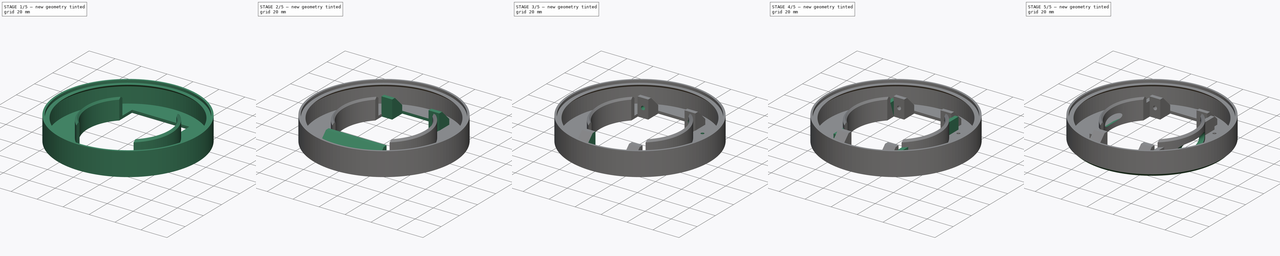
[diagram: build sequence overview — one tinted view per stage of 5, left to right]
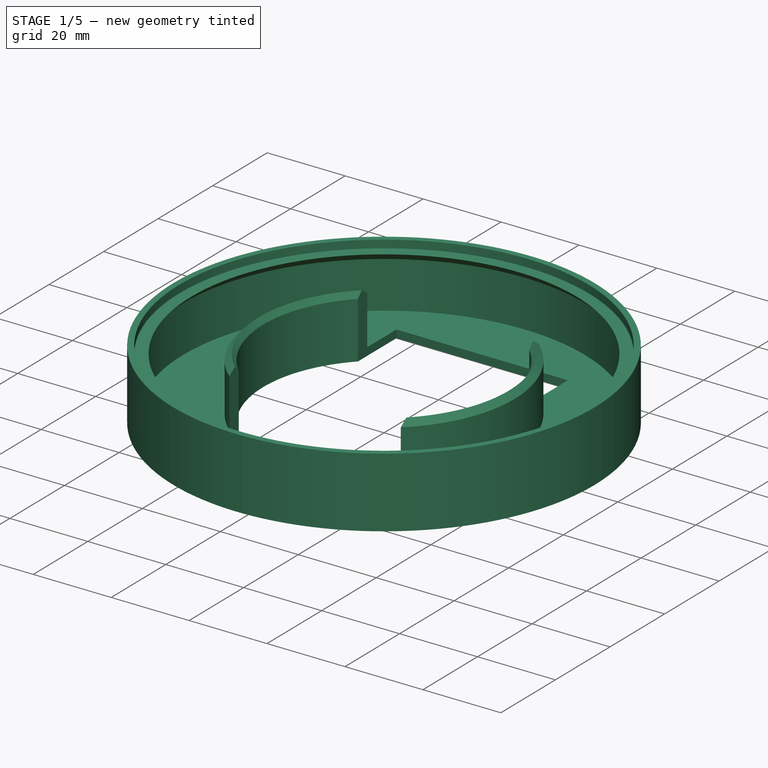
[diagram: stage 1 of 5 — iso view after this stage's code; geometry added in this stage tinted green]
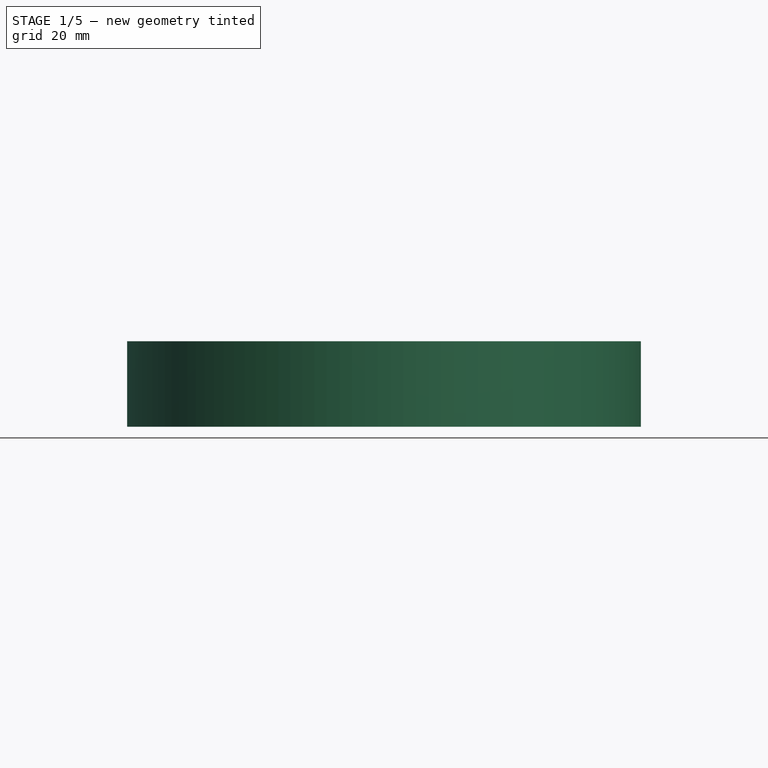
[diagram: stage 1 of 5 — front view after this stage's code; geometry added in this stage tinted green]
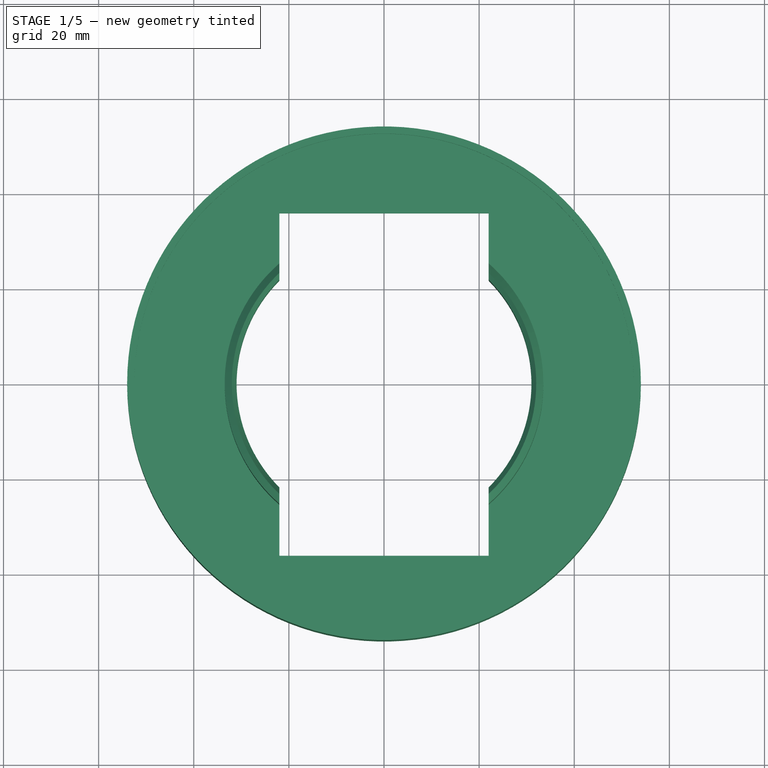
[diagram: stage 1 of 5 — top view after this stage's code; geometry added in this stage tinted green]
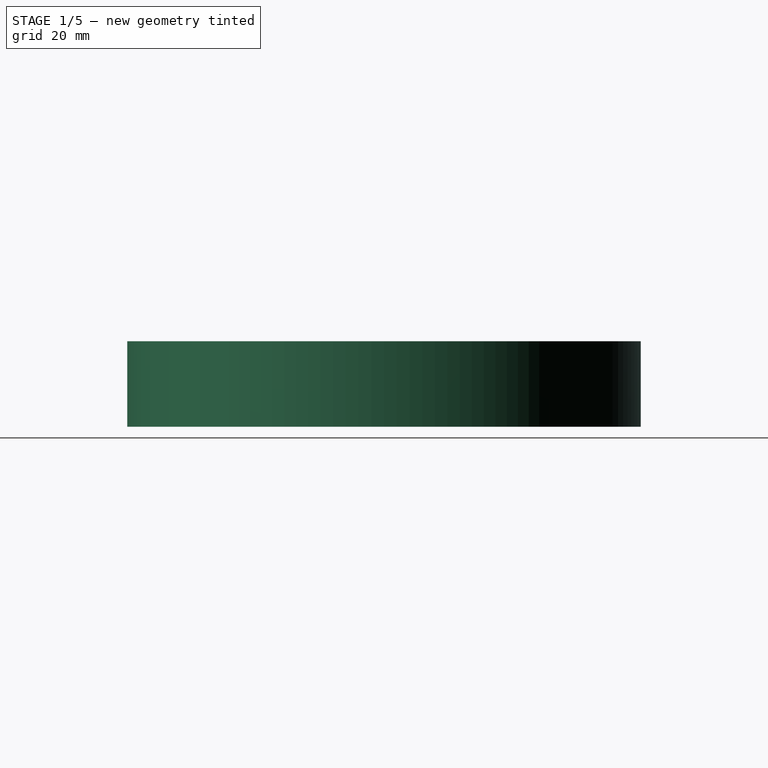
[diagram: stage 1 of 5 — right view after this stage's code; geometry added in this stage tinted green]
FCSTD DOCUMENT  (FreeCAD 0.18.4R)
Label: meltytest4
License: All rights reserved
LicenseURL: http://en.wikipedia.org/wiki/All_rights_reserved
objects: PartDesign::Mirrored×10, Sketcher::SketchObject×7, PartDesign::Pocket×4, PartDesign::MultiTransform×3, PartDesign::Pad×2, PartDesign::Revolution×1, PartDesign::SubtractiveCylinder×1, PartDesign::Chamfer×1, PartDesign::Body×1
note: 38 computed .brp shape members not serialized (recipe doc carries the construction recipe); baked Part::Feature solids carry a one-line shape summary decoded from their .brp

FEATURE [Sketcher::SketchObject] Sketch
  MapMode = 5
  Placement = pos=(0,0,0) rot=(1,0,0;1.5708rad)
  Support = -> [XZ_Plane]
  sketch-geometry (12):
    g0: LineSegment StartX=31 StartY=0 StartZ=0 EndX=31 EndY=14.5 EndZ=0
    g1: LineSegment StartX=31 StartY=14.5 StartZ=0 EndX=32 EndY=16 EndZ=0
    g2: LineSegment StartX=32 StartY=16 StartZ=0 EndX=33.5 EndY=14.5 EndZ=0
    g3: LineSegment StartX=33.5 StartY=14.5 StartZ=0 EndX=33.5 EndY=2 EndZ=0
    g4: LineSegment StartX=33.5 StartY=2 StartZ=0 EndX=51.5 EndY=2 EndZ=0
    g5: LineSegment StartX=51.5 StartY=2 StartZ=0 EndX=51.5 EndY=14 EndZ=0
    g6: LineSegment StartX=51.5 StartY=14 StartZ=0 EndX=49.5 EndY=16 EndZ=0
    g7: LineSegment StartX=49.5 StartY=16 StartZ=0 EndX=52.5 EndY=16 EndZ=0
    g8: LineSegment StartX=52.5 StartY=16 StartZ=0 EndX=52.5 EndY=18 EndZ=0
    g9: LineSegment StartX=52.5 StartY=18 StartZ=0 EndX=54 EndY=18 EndZ=0
    g10: LineSegment StartX=54 StartY=18 StartZ=0 EndX=54 EndY=0 EndZ=0
    g11: LineSegment StartX=54 StartY=0 StartZ=0 EndX=31 EndY=0 EndZ=0
  constraints (36):
    c: PointOnObject(g0,g-1)
    c: Vertical(g0)
    c: Coincident(g0,g1)
    c: Coincident(g1,g2)
    c: Coincident(g2,g3)
    c: Vertical(g3)
    c: Coincident(g3,g4)
    c: Horizontal(g4)
    c: Coincident(g4,g5)
    c: Vertical(g5)
    c: Coincident(g6,g7)
    c: Coincident(g7,g8)
    c: Vertical(g8)
    c: Coincident(g8,g9)
    c: Coincident(g9,g10)
    c: PointOnObject(g10,g-1)
    c: Vertical(g10)
    c: Coincident(g10,g11)
    c: Coincident(g11,g0)
    c: DistanceX(g-1,g0) = 31
    c: DistanceX(g-1,g10) = 54
    c: Coincident(g6,g5)
    c: DistanceX(g4,g10) = 2.5
    c: DistanceY(g10,g7) = 16
    c: Horizontal(g9)
    c: Horizontal(g7)
    c: DistanceY(g7,g9) = 2
    c: DistanceY(g5,g6) = 2
    c: DistanceX(g6,g5) = 2
    c: DistanceY(g2,g1) = 1.5
    c: Horizontal(g2,g0)
    c: DistanceX(g1,g2) = 1.5
    c: DistanceX(g9,g9) = 1.5
    c: DistanceX(g0,g3) = 2.5
    c: DistanceY(g0,g3) = 2
    c: Horizontal(g7,g1)
FEATURE [PartDesign::Revolution] Revolution
  Angle = 360
  Axis = (0,-2e-16,1)
  Base = (0,0,0)
  Placement = pos=(0,0,0) rot=(1,0,0;1.5708rad)
  Profile = -> Sketch
  ReferenceAxis = -> Sketch [V_Axis]
  Refine = true
  Reversed = true
FEATURE [Sketcher::SketchObject] Sketch001
  MapMode = 5
  Support = -> [XY_Plane]
  sketch-geometry (4):
    g0: LineSegment StartX=-22 StartY=36 StartZ=0 EndX=22 EndY=36 EndZ=0
    g1: LineSegment StartX=22 StartY=21 StartZ=0 EndX=-22 EndY=21 EndZ=0
    g2: LineSegment StartX=-22 StartY=21 StartZ=0 EndX=-22 EndY=36 EndZ=0
    g3: LineSegment StartX=22 StartY=21 StartZ=0 EndX=22 EndY=36 EndZ=0
  constraints (10):
    c: DistanceY(g-1,g1) = 21
    c: DistanceY(g1,g0) = 15
    c: DistanceX(g0,g0) = 44
    c: Symmetric(g1,g1,g-2)
    c: Coincident(g2,g0)
    c: Coincident(g3,g0)
    c: Vertical(g2)
    c: Symmetric(g0,g0,g-2)
    c: Coincident(g3,g1)
    c: Coincident(g2,g1)
FEATURE [PartDesign::Pocket] Pocket
  BaseFeature = -> Revolution
  Length = 5
  Length2 = 100
  Placement = pos=(0,0,0) rot=(1,0,0;1.5708rad)
  Profile = -> Sketch001
  Refine = true
  Reversed = true
  Type = 1
FEATURE [PartDesign::Mirrored] Mirrored
  BaseFeature = -> Pocket
  MirrorPlane = -> XZ_Plane
  Originals = -> [Pocket]
  Placement = pos=(0,0,0) rot=(1,0,0;1.5708rad)
  Refine = true
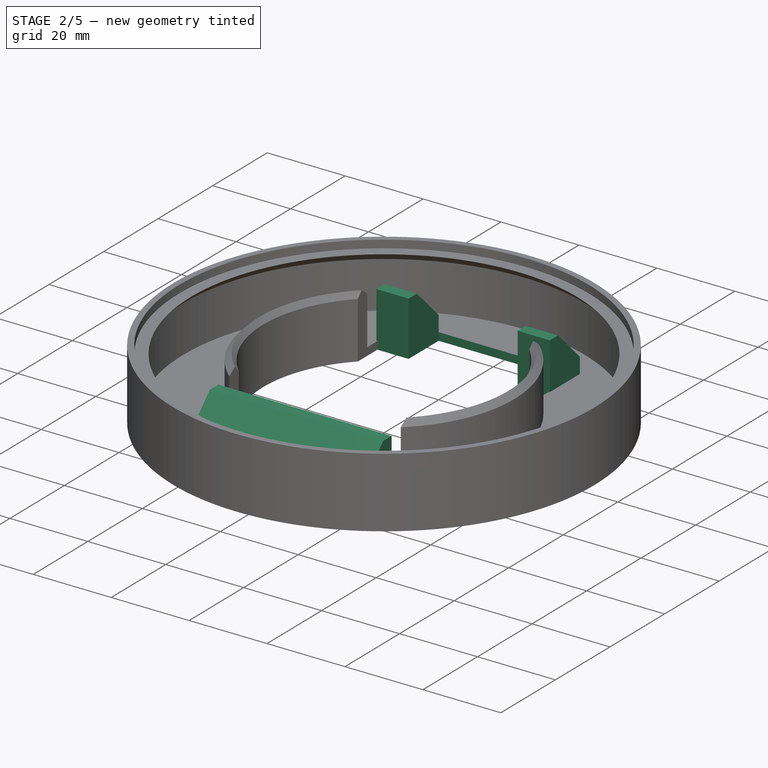
[diagram: stage 2 of 5 — iso view after this stage's code; geometry added in this stage tinted green]
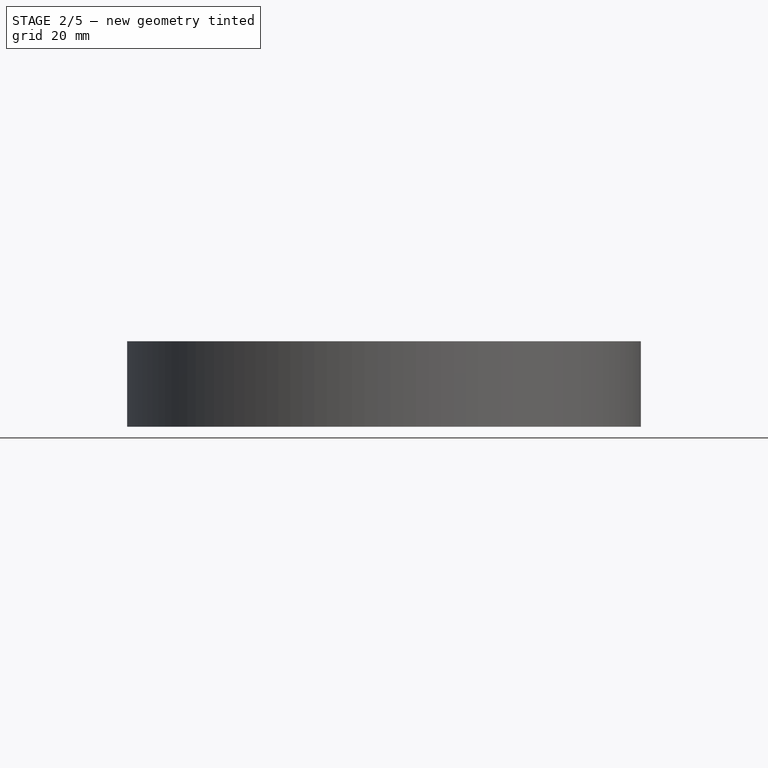
[diagram: stage 2 of 5 — front view after this stage's code; geometry added in this stage tinted green]
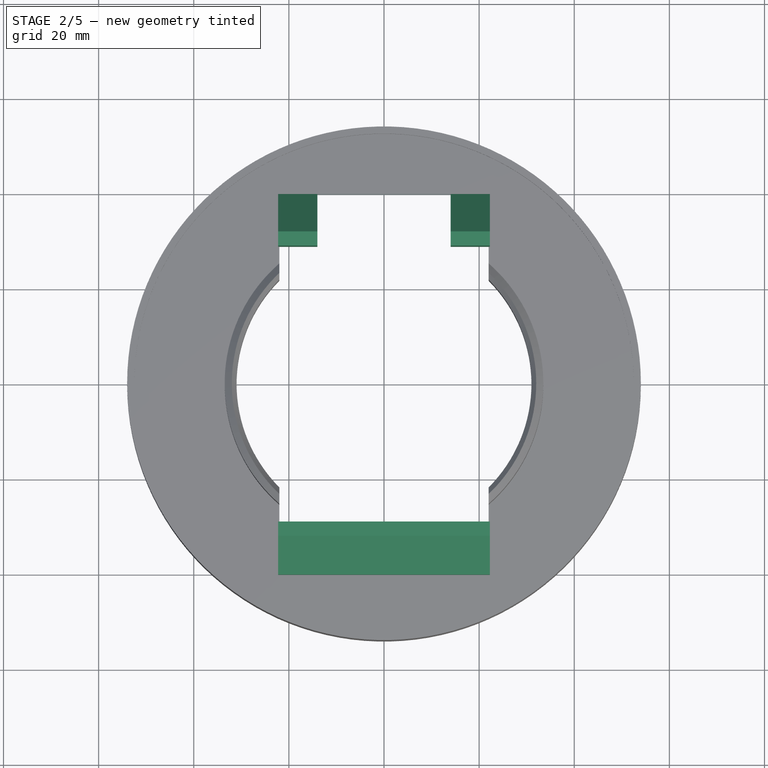
[diagram: stage 2 of 5 — top view after this stage's code; geometry added in this stage tinted green]
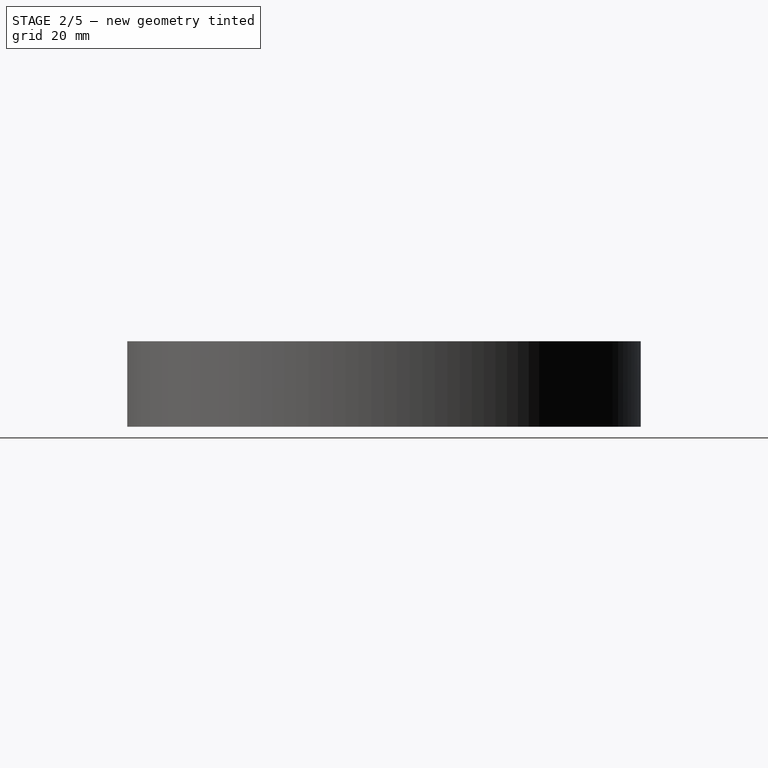
[diagram: stage 2 of 5 — right view after this stage's code; geometry added in this stage tinted green]
FEATURE [Sketcher::SketchObject] Sketch002
  MapMode = 5
  Placement = pos=(0,0,0) rot=(0.57735,0.57735,0.57735;2.0944rad)
  Support = -> [YZ_Plane]
  sketch-geometry (5):
    g0: LineSegment StartX=-40 StartY=0 StartZ=0 EndX=-40 EndY=6 EndZ=0
    g1: LineSegment StartX=-40 StartY=6 StartZ=0 EndX=-32 EndY=14 EndZ=0
    g2: LineSegment StartX=-32 StartY=14 StartZ=0 EndX=-29 EndY=14 EndZ=0
    g3: LineSegment StartX=-29 StartY=14 StartZ=0 EndX=-29 EndY=0 EndZ=0
    g4: LineSegment StartX=-29 StartY=0 StartZ=0 EndX=-40 EndY=0 EndZ=0
  constraints (15):
    c: Vertical(g0)
    c: Coincident(g0,g1)
    c: Coincident(g1,g2)
    c: DistanceY(g0,g0) = 6
    c: PointOnObject(g3,g-1)
    c: Vertical(g3)
    c: Coincident(g3,g4)
    c: PointOnObject(g4,g-1)
    c: Coincident(g0,g4)
    c: DistanceX(g3,g-1) = 29
    c: DistanceX(g0,g3) = 11
    c: Horizontal(g2)
    c: DistanceX(g2,g2) = 3
    c: Coincident(g2,g3)
    c: DistanceY(g3,g3) = 14
FEATURE [PartDesign::Pad] Pad
  BaseFeature = -> Mirrored
  Length = 44.5
  Length2 = 100
  Midplane = true
  Placement = pos=(0,0,0) rot=(1,0,0;1.5708rad)
  Profile = -> Sketch002
  Refine = true
  Type = 0
FEATURE [PartDesign::Mirrored] Mirrored001
  BaseFeature = -> Pad
  MirrorPlane = -> XZ_Plane
  Originals = -> [Pad]
  Placement = pos=(0,0,0) rot=(1,0,0;1.5708rad)
  Refine = true
FEATURE [Sketcher::SketchObject] Sketch003
  sketch-geometry (4):
    g0: LineSegment StartX=-14 StartY=25 StartZ=0 EndX=14 EndY=25 EndZ=0
    g1: LineSegment StartX=14 StartY=25 StartZ=0 EndX=14 EndY=40 EndZ=0
    g2: LineSegment StartX=14 StartY=40 StartZ=0 EndX=-14 EndY=40 EndZ=0
    g3: LineSegment StartX=-14 StartY=40 StartZ=0 EndX=-14 EndY=25 EndZ=0
  constraints (11):
    c: Coincident(g0,g1)
    c: Coincident(g1,g2)
    c: Coincident(g2,g3)
    c: Coincident(g3,g0)
    c: Horizontal(g2)
    c: Vertical(g1)
    c: Vertical(g3)
    c: Symmetric(g0,g0,g-2)
    c: DistanceY(g-1,g0) = 25
    c: DistanceY(g1,g1) = 15
    c: DistanceX(g2,g2) = 28
FEATURE [PartDesign::Pocket] Pocket001
  BaseFeature = -> Mirrored001
  Length = 5
  Length2 = 100
  Placement = pos=(0,0,0) rot=(1,0,0;1.5708rad)
  Profile = -> Sketch003
  Refine = true
  Reversed = true
  Type = 1
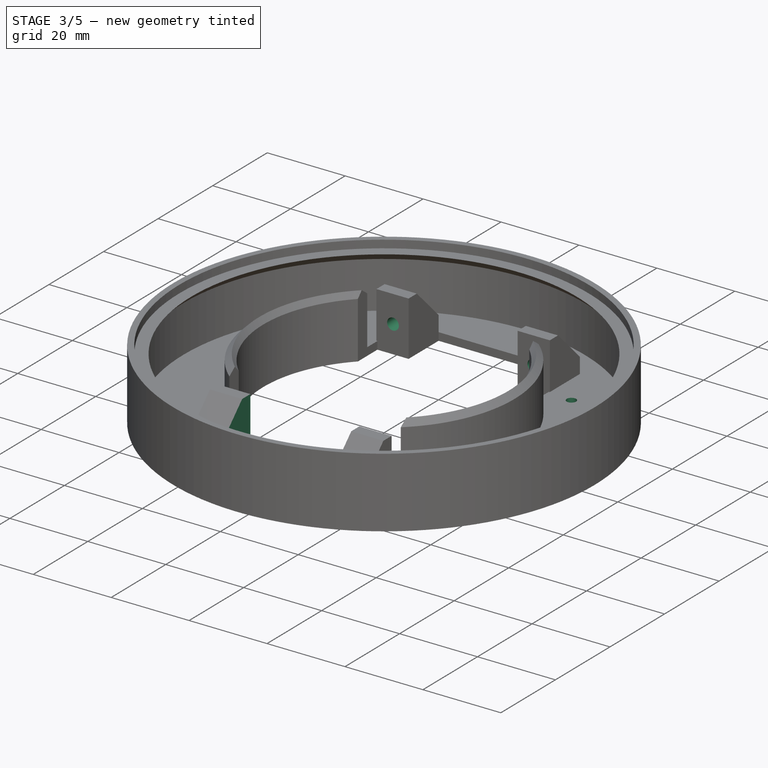
[diagram: stage 3 of 5 — iso view after this stage's code; geometry added in this stage tinted green]
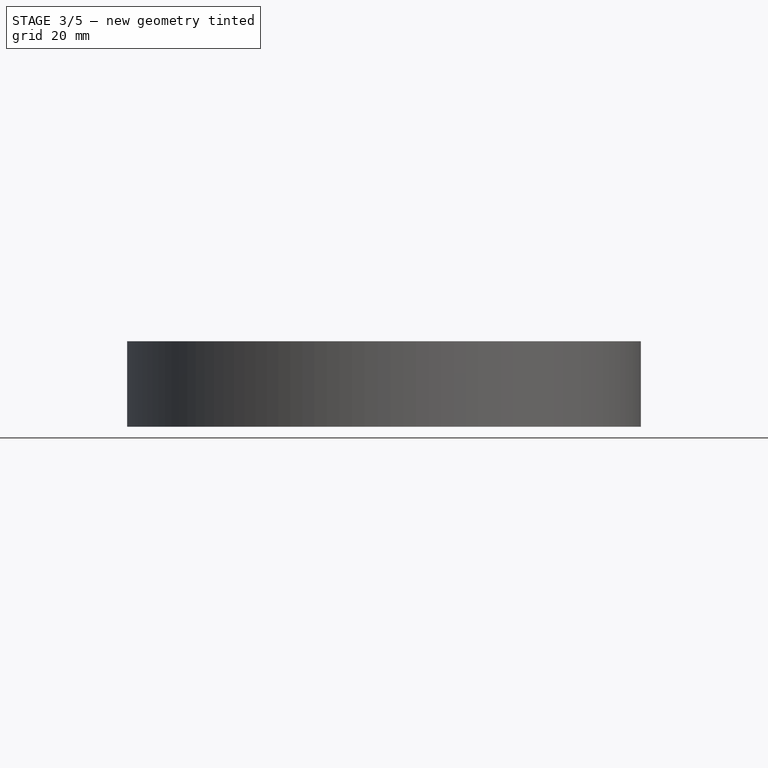
[diagram: stage 3 of 5 — front view after this stage's code; geometry added in this stage tinted green]
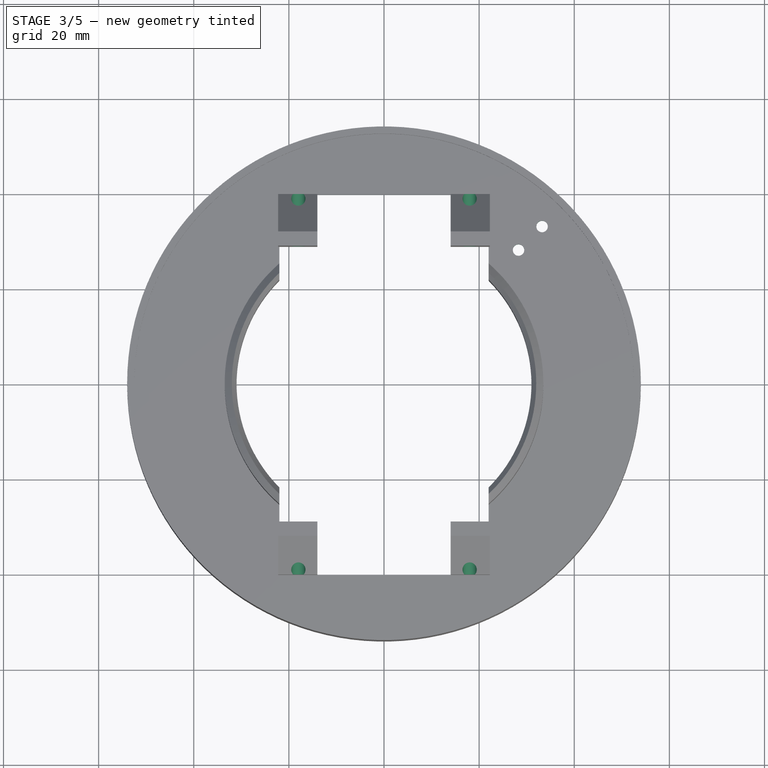
[diagram: stage 3 of 5 — top view after this stage's code; geometry added in this stage tinted green]
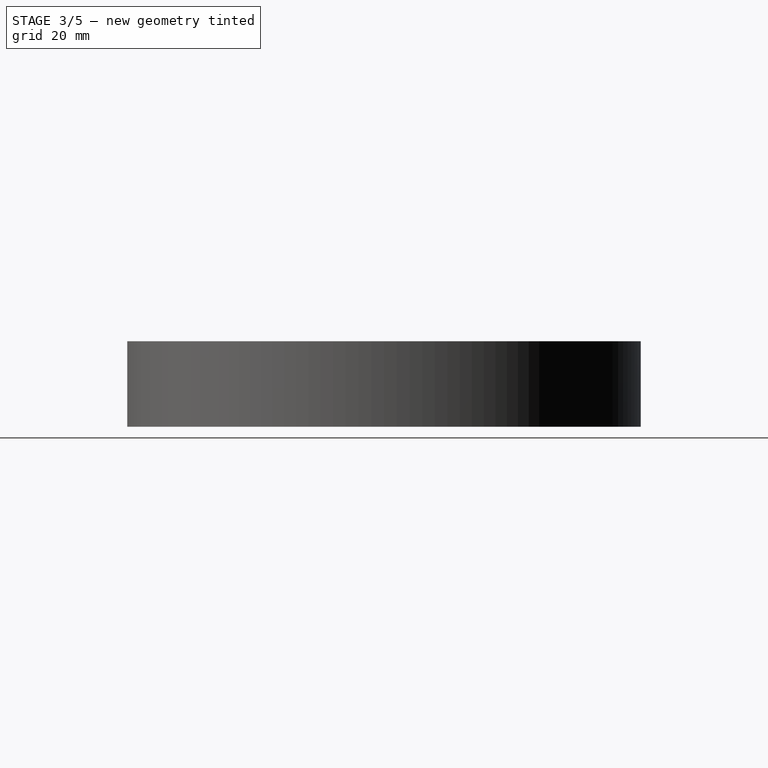
[diagram: stage 3 of 5 — right view after this stage's code; geometry added in this stage tinted green]
FEATURE [PartDesign::Mirrored] Mirrored002
  BaseFeature = -> Pocket001
  MirrorPlane = -> XZ_Plane
  Originals = -> [Pocket001]
  Placement = pos=(0,0,0) rot=(1,0,0;1.5708rad)
  Refine = true
FEATURE [Sketcher::SketchObject] Sketch004
  MapMode = 5
  Placement = pos=(0,0,0) rot=(1,0,0;1.5708rad)
  Support = -> [XZ_Plane]
  sketch-geometry (1):
    g0: Circle CenterX=-18 CenterY=7 CenterZ=0 NormalX=0 NormalY=0 NormalZ=1 AngleXU=0 Radius=1.5
  constraints (3):
    c: Radius(g0) = 1.5
    c: DistanceX(g0,g-1) = 18
    c: DistanceY(g-1,g0) = 7
FEATURE [PartDesign::Pocket] Pocket002
  BaseFeature = -> Mirrored002
  Length = 45
  Length2 = 100
  Placement = pos=(0,0,0) rot=(1,0,0;1.5708rad)
  Profile = -> Sketch004
  Refine = true
  Type = 0
FEATURE [Sketcher::SketchObject] Sketch006
  MapMode = 5
  Support = -> [XY_Plane]
  sketch-geometry (3):
    g0: Circle CenterX=28.2843 CenterY=28.2843 CenterZ=0 NormalX=0 NormalY=0 NormalZ=1 AngleXU=0 Radius=1.2
    g1: Circle CenterX=33.234 CenterY=33.234 CenterZ=0 NormalX=0 NormalY=0 NormalZ=1 AngleXU=0 Radius=1.2
    g2: LineSegment [constr] StartX=0 StartY=0 StartZ=0 EndX=49.4975 EndY=49.4975 EndZ=0
  constraints (9):
    c: Radius(g0) = 1.2
    c: Radius(g1) = 1.2
    c: Coincident(g2,g-1)
    c: Angle(g-1,g2) = 0.785398
    c: PointOnObject(g1,g2)
    c: PointOnObject(g0,g2)
    c: Distance(g0,g-1) = 40
    c: Distance(g1,g-1) = 47
    c: Distance(g2,g-1) = 70
FEATURE [Sketcher::SketchObject] Sketch007
  MapMode = 5
  Support = -> [XY_Plane]
  sketch-geometry (4):
    g0: LineSegment StartX=22 StartY=33 StartZ=0 EndX=25 EndY=33 EndZ=0
    g1: LineSegment StartX=25 StartY=33 StartZ=0 EndX=25 EndY=22 EndZ=0
    g2: LineSegment StartX=25 StartY=22 StartZ=0 EndX=22 EndY=22 EndZ=0
    g3: LineSegment StartX=22 StartY=22 StartZ=0 EndX=22 EndY=33 EndZ=0
  constraints (12):
    c: Coincident(g0,g1)
    c: Coincident(g1,g2)
    c: Coincident(g2,g3)
    c: Coincident(g3,g0)
    c: Horizontal(g0)
    c: Horizontal(g2)
    c: Vertical(g1)
    c: Vertical(g3)
    c: DistanceX(g0,g0) = 3
    c: DistanceX(g-1,g2) = 22
    c: DistanceY(g-1,g2) = 22
    c: DistanceY(g1,g1) = 11
FEATURE [PartDesign::Mirrored] Mirrored011
  MirrorPlane = -> YZ_Plane
  Placement = pos=(0,0,0) rot=(1,0,0;1.5708rad)
  Refine = true
FEATURE [PartDesign::Mirrored] Mirrored012
  MirrorPlane = -> XZ_Plane
  Placement = pos=(0,0,0) rot=(1,0,0;1.5708rad)
  Refine = true
FEATURE [PartDesign::Mirrored] Mirrored014
  MirrorPlane = -> YZ_Plane
  Placement = pos=(0,0,0) rot=(1,0,0;1.5708rad)
  Refine = true
FEATURE [PartDesign::Mirrored] Mirrored015
  MirrorPlane = -> XZ_Plane
  Placement = pos=(0,0,0) rot=(1,0,0;1.5708rad)
  Refine = true
FEATURE [PartDesign::MultiTransform] MultiTransform
  BaseFeature = -> Pocket002
  Originals = -> [Pocket002]
  Placement = pos=(0,0,0) rot=(1,0,0;1.5708rad)
  Refine = true
  Transformations = -> [Mirrored014,Mirrored015]
FEATURE [PartDesign::Pocket] Pocket004
  BaseFeature = -> MultiTransform
  Length = 5
  Length2 = 100
  Placement = pos=(0,0,0) rot=(1,0,0;1.5708rad)
  Profile = -> Sketch006
  Refine = true
  Reversed = true
  Type = 1
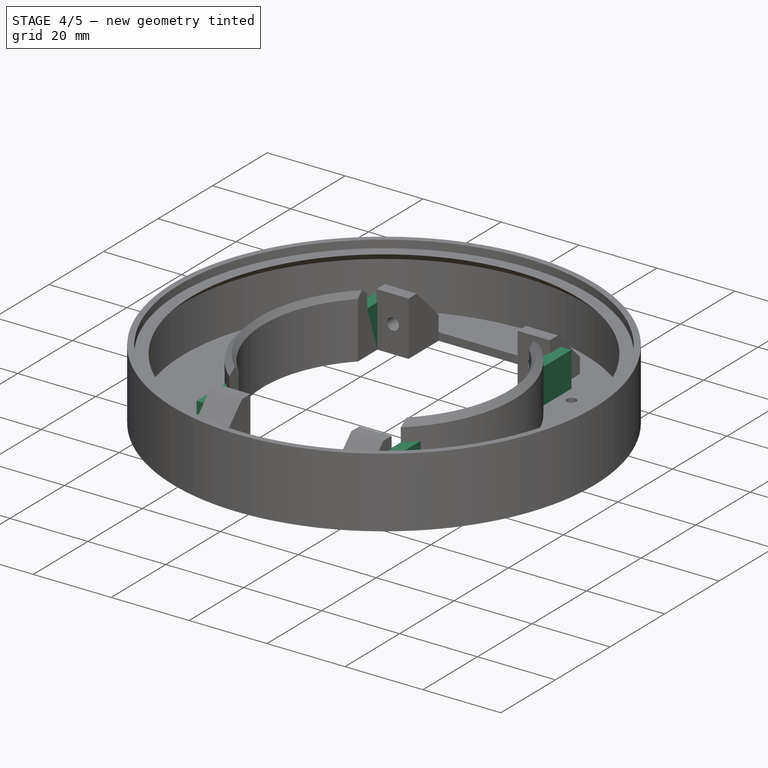
[diagram: stage 4 of 5 — iso view after this stage's code; geometry added in this stage tinted green]
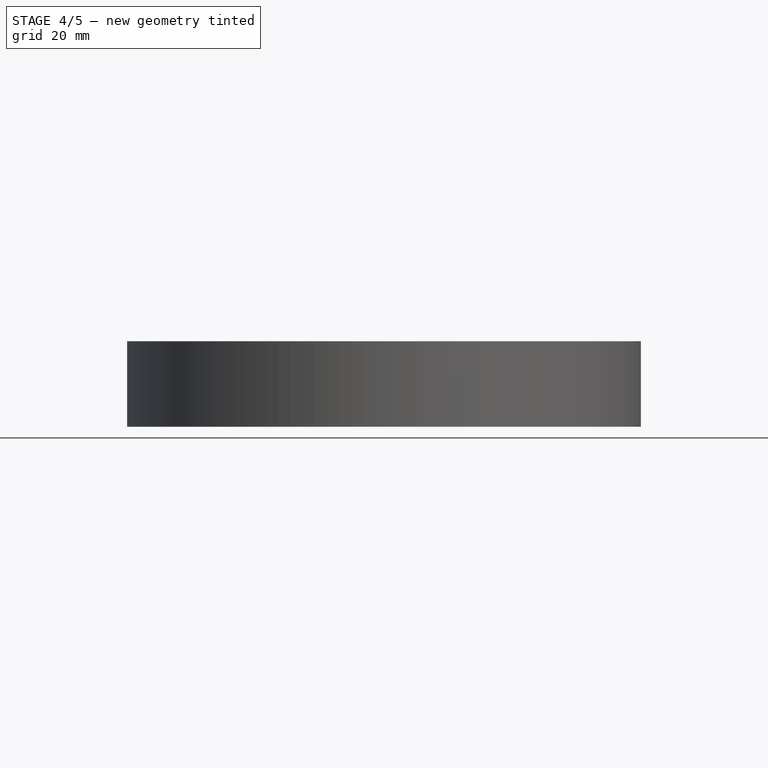
[diagram: stage 4 of 5 — front view after this stage's code; geometry added in this stage tinted green]
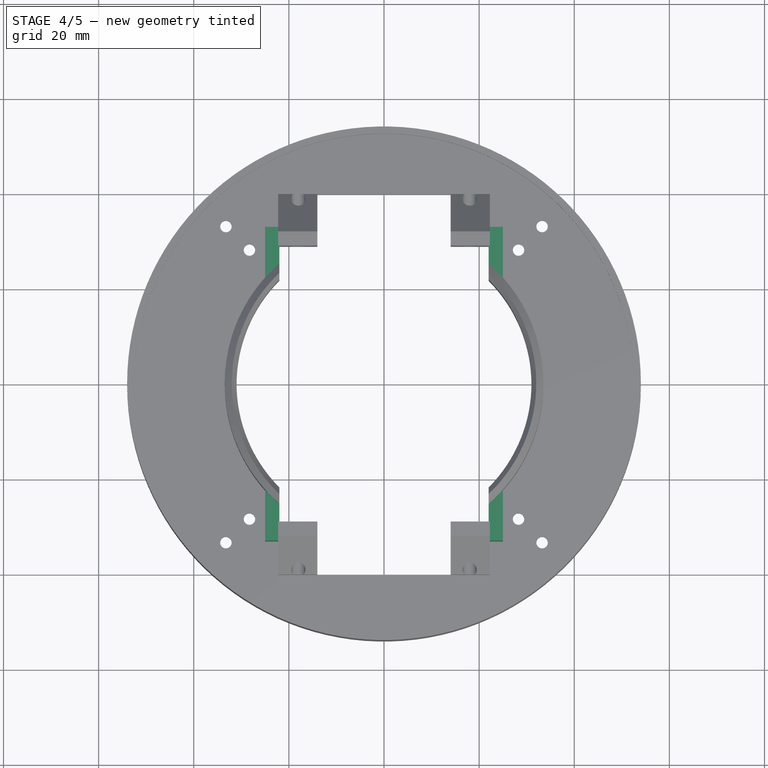
[diagram: stage 4 of 5 — top view after this stage's code; geometry added in this stage tinted green]
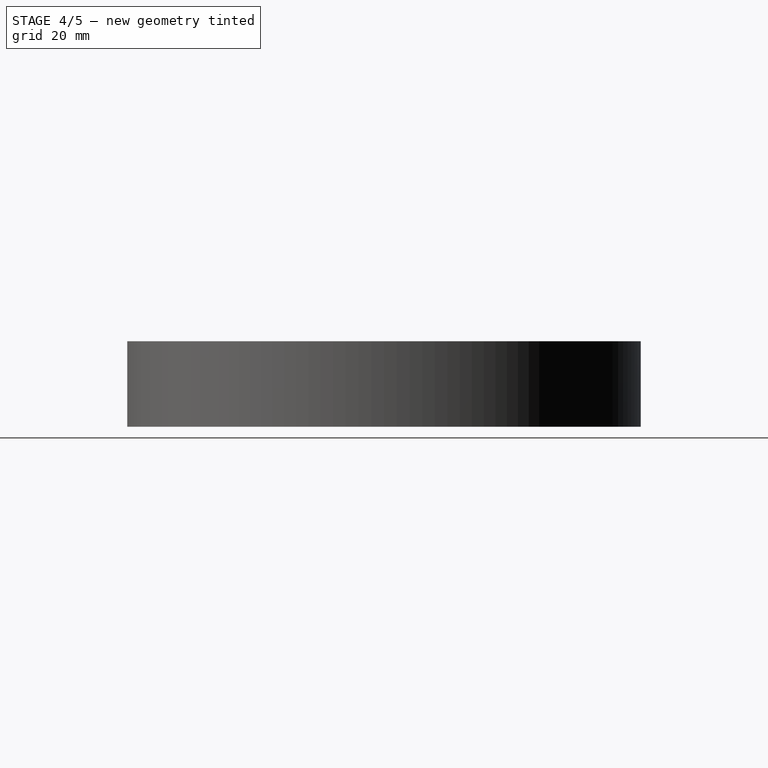
[diagram: stage 4 of 5 — right view after this stage's code; geometry added in this stage tinted green]
FEATURE [PartDesign::Mirrored] Mirrored016
  MirrorPlane = -> YZ_Plane
  Placement = pos=(0,0,0) rot=(1,0,0;1.5708rad)
  Refine = true
FEATURE [PartDesign::Mirrored] Mirrored017
  MirrorPlane = -> XZ_Plane
  Placement = pos=(0,0,0) rot=(1,0,0;1.5708rad)
  Refine = true
FEATURE [PartDesign::MultiTransform] MultiTransform001
  BaseFeature = -> Pocket004
  Originals = -> [Pocket004]
  Placement = pos=(0,0,0) rot=(1,0,0;1.5708rad)
  Refine = true
  Transformations = -> [Mirrored016,Mirrored017]
FEATURE [PartDesign::Pad] Pad001
  BaseFeature = -> MultiTransform001
  Length = 11
  Length2 = 100
  Placement = pos=(0,0,0) rot=(1,0,0;1.5708rad)
  Profile = -> Sketch007
  Refine = true
  Type = 0
FEATURE [PartDesign::MultiTransform] MultiTransform002
  BaseFeature = -> Pad001
  Originals = -> [Pad001]
  Placement = pos=(0,0,0) rot=(1,0,0;1.5708rad)
  Refine = true
  Transformations = -> [Mirrored011,Mirrored012]
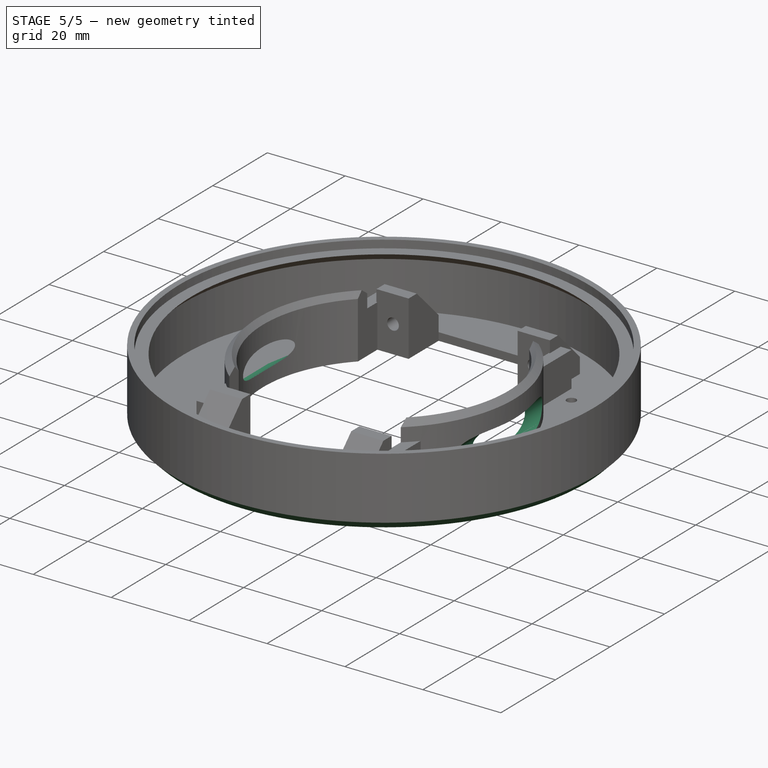
[diagram: stage 5 of 5 — iso view after this stage's code; geometry added in this stage tinted green]
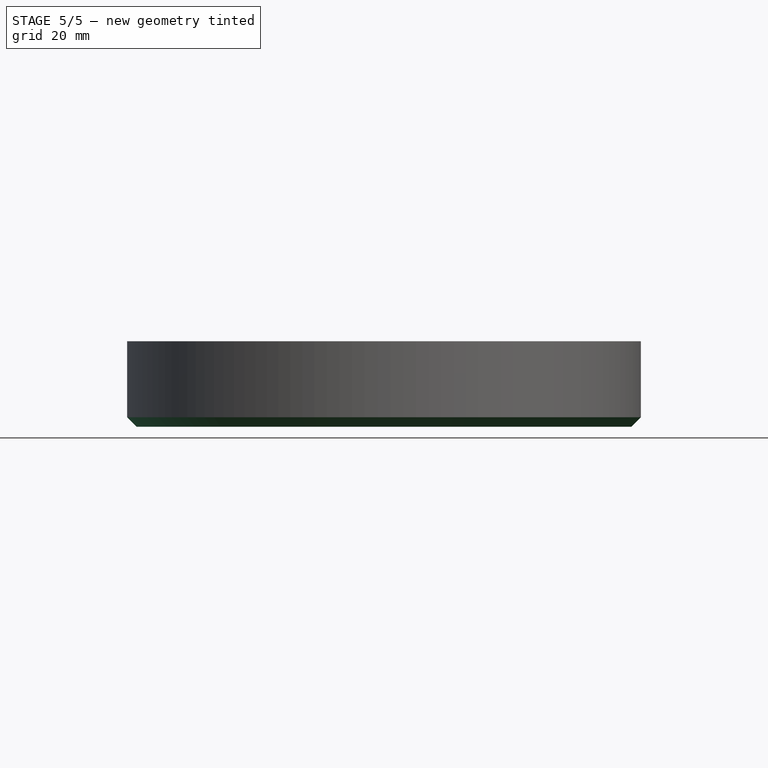
[diagram: stage 5 of 5 — front view after this stage's code; geometry added in this stage tinted green]
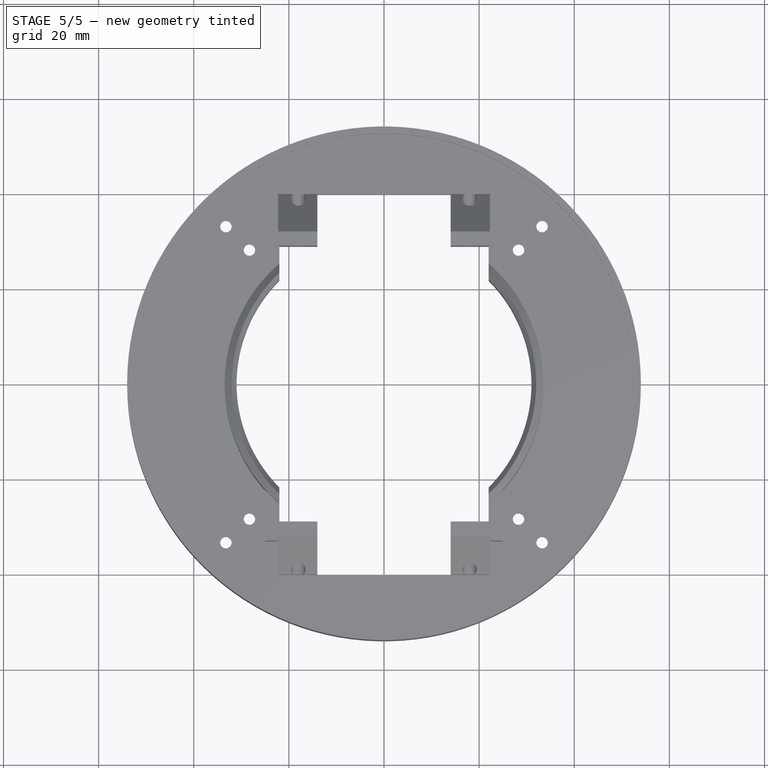
[diagram: stage 5 of 5 — top view after this stage's code; geometry added in this stage tinted green]
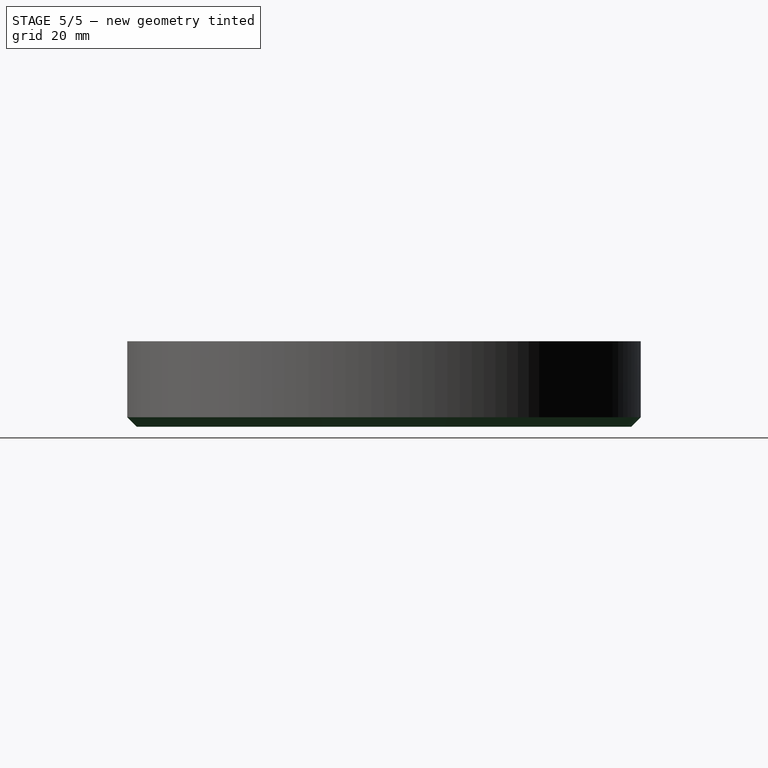
[diagram: stage 5 of 5 — right view after this stage's code; geometry added in this stage tinted green]
FEATURE [PartDesign::SubtractiveCylinder] Cylinder
  Angle = 360
  AttacherType = Attacher::AttachEngine3D
  AttachmentOffset = pos=(33,6.5,-16) rot=(0,0,1;0rad)
  BaseFeature = -> MultiTransform002
  Height = 33
  MapMode = 5
  Placement = pos=(33,16,6.5) rot=(1,0,0;1.5708rad)
  Radius = 3.5
  Refine = true
  Support = -> [XZ_Plane]
FEATURE [PartDesign::Mirrored] Mirrored013
  BaseFeature = -> Cylinder
  MirrorPlane = -> YZ_Plane
  Originals = -> [Cylinder]
  Placement = pos=(33,16,6.5) rot=(1,0,0;1.5708rad)
  Refine = true
FEATURE [PartDesign::Chamfer] Chamfer
  Base = -> Mirrored013 [Edge23]
  BaseFeature = -> Mirrored013
  Placement = pos=(33,16,6.5) rot=(1,0,0;1.5708rad)
  Size = 2
FEATURE [PartDesign::Body] Body
  Group = -> [Sketch,Revolution,Sketch001,Pocket,Mirrored,Sketch002,Pad,Mirrored001,Sketch003,Pocket001,Mirrored002,Sketch004,Pocket002,MultiTransform,Pocket004,MultiTransform001,Sketch006,Sketch007,Pad001,MultiTransform002,Mirrored011,Mirrored012,Cylinder,Mirrored013,Mirrored014,Mirrored015,Mirrored016,Mirrored017,Chamfer]
  Origin = -> Origin
  Tip = -> Chamfer
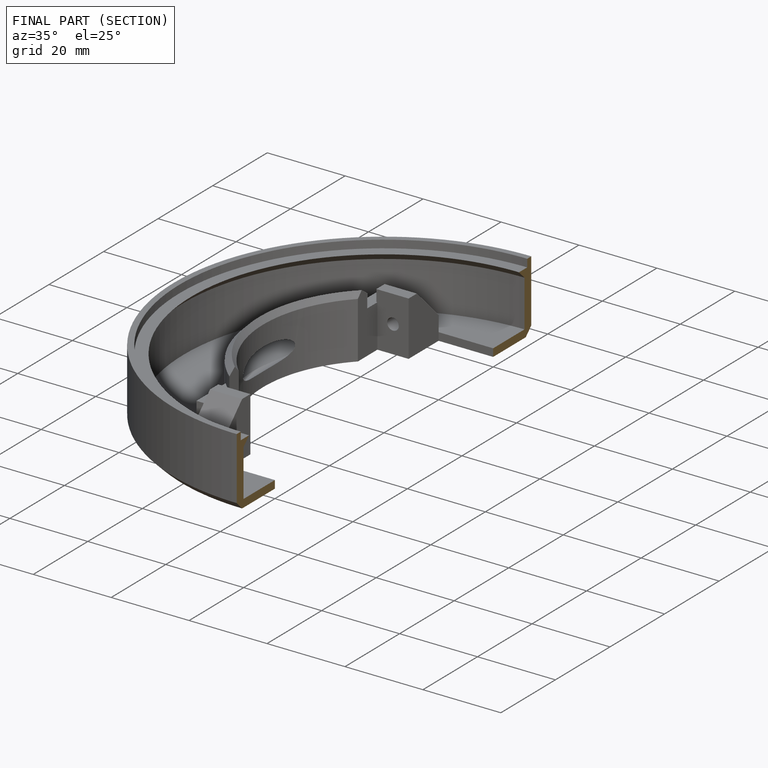
[diagram: finished part — half-section view (interior)]
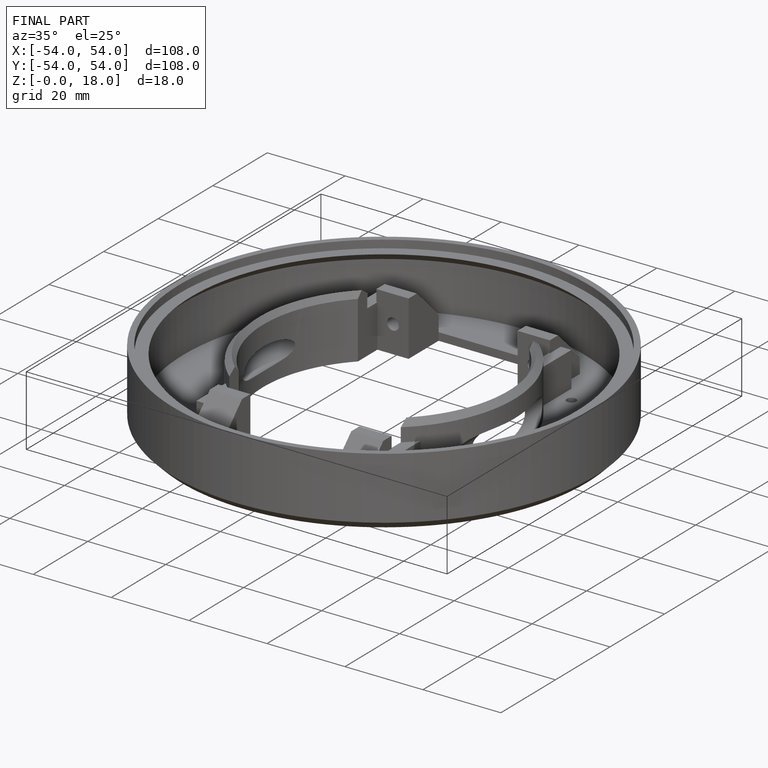
[diagram: finished part — iso view with bounding-box wireframe]
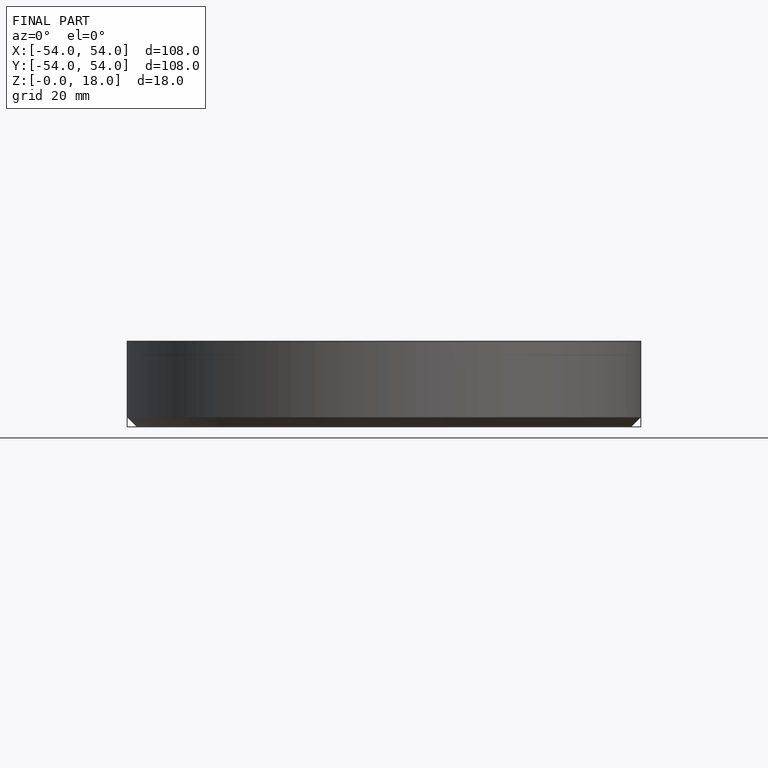
[diagram: finished part — front view with bounding-box wireframe]
